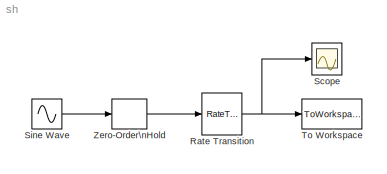
MODEL sh
KIND model
BLOCK [RateTransition] Rate Transition
  SID = 1
BLOCK [Scope] Scope
  Ports = [1]
  SID = 2
  ScopeSpecificationString = C++SS(StrPVP('Location','[1, 45, 1017, 715]'),StrPVP('Open','off'),StrPVP('ZoomMode','xonly'),MxPVP('AxesTitles',24,'struct(''axes1'',''%<SignalLabel>'')'),StrPVP('DataFormat','StructureWithTime'),StrPVP('LimitDataPoints','off'),StrPVP('Decimation','1'),StrPVP('BlockParamSampleInput','off'))
BLOCK [Sin] Sine Wave
  Frequency = 2*pi*100
  Ports = [0, 1]
  SID = 3
  SampleTime = 0
BLOCK [ToWorkspace] To Workspace
  MaxDataPoints = inf
  Ports = [1]
  SID = 4
  SampleTime = ts
  VariableName = simout
BLOCK [ZeroOrderHold] Zero-Order\nHold
  SID = 5
  SampleTime = 0.001
NET Rate Transition:1 -> Scope:1, To Workspace:1
LINE Sine Wave:1 -> Zero-Order\nHold:1
LINE Zero-Order\nHold:1 -> Rate Transition:1
note: NET lines group one-source signal fan-out (src -> all destinations, sorted); 1:1 wires keep LINE
